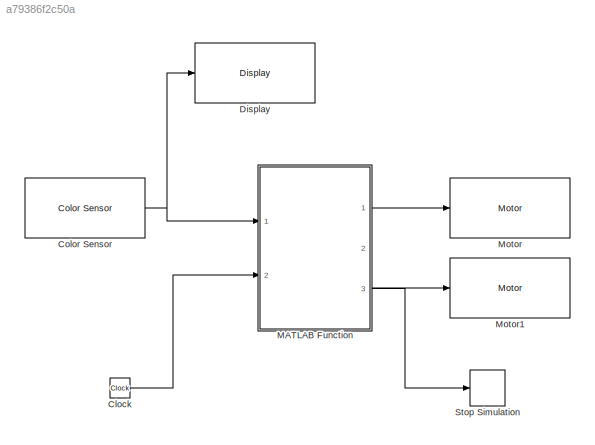
MODEL slx_a79386f2c50a
KIND model
CONFIG AbsTol = auto
CONFIG EnableMultiTasking = on
CONFIG FixedStep = auto
CONFIG MaxStep = auto
CONFIG MinStep = auto
CONFIG RelTol = 1e-3
CONFIG SampleTimeConstraint = Unconstrained
CONFIG Solver = FixedStepAuto
CONFIG SolverName = FixedStepAuto
CONFIG StartTime = 0.0
CONFIG StopTime = 10.0
BLOCK [Clock] Clock
  Decimation = 1000
BLOCK [Reference] Color Sensor  REF=legoev3lib/Color Sensor
  Ports = [0, 1]
  SourceBlock = legoev3lib/Color Sensor
  SourceType = LEGO MINDSTORMS EV3 Color Sensor
BLOCK [Reference] Display  REF=legoev3lib/Display
  Ports = [1]
  SourceBlock = legoev3lib/Display
  SourceType = LEGO MINDSTORMS EV3 Display
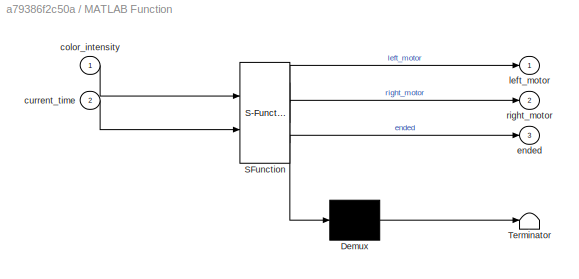
BLOCK [SubSystem] MATLAB Function
  ErrorFcn = Stateflow.Translate.translate
  PermitHierarchicalResolution = ExplicitOnly
  Ports = [2, 3]
  RequestExecContextInheritance = off
  SFBlockType = MATLAB Function
  TreatAsAtomicUnit = on
  Variant = off
BLOCK [Demux] MATLAB Function/ Demux 
  Outputs = 1
  Ports = [1, 1]
BLOCK [S-Function] MATLAB Function/ SFunction 
  EnableBusSupport = on
  FunctionName = sf_sfun
  PortCounts = [2 4]
  Ports = [2, 4]
  SFcnIsStateOwnerBlock = off
  SFunctionDeploymentMode = off
  Tag = Stateflow S-Function control_light 2
BLOCK [Terminator] MATLAB Function/ Terminator 
BLOCK [Inport] MATLAB Function/color_intensity
  IconDisplay = Port number
BLOCK [Inport] MATLAB Function/current_time
  IconDisplay = Port number
  Port = 2
BLOCK [Outport] MATLAB Function/ended
  IconDisplay = Port number
  Port = 3
BLOCK [Outport] MATLAB Function/left_motor
  IconDisplay = Port number
BLOCK [Outport] MATLAB Function/right_motor
  IconDisplay = Port number
  Port = 2
BLOCK [Reference] Motor  REF=legoev3lib/Motor
  Ports = [1]
  SourceBlock = legoev3lib/Motor
  SourceType = LEGO MINDSTORMS EV3 Motor
BLOCK [Reference] Motor1  REF=legoev3lib/Motor
  Ports = [1]
  SourceBlock = legoev3lib/Motor
  SourceType = LEGO MINDSTORMS EV3 Motor
BLOCK [Stop] Stop Simulation
LINE Clock:1 -> MATLAB Function:2
NET Color Sensor:1 -> Display:1, MATLAB Function:1
LINE MATLAB Function:1 -> Motor:1
LINE MATLAB Function:2 -> Motor1:1
LINE MATLAB Function:3 -> Stop Simulation:1
note: NET lines group one-source signal fan-out (src -> all destinations, sorted); 1:1 wires keep LINE
CHART MATLAB Function states=1 transitions=1
  STATE_LABEL 'eML_blk_kernel()'
  STATE_LABEL 'SCRIPT:\nfunction [left_motor, right_motor, ended] = control(color_intensity, current_time)\n    persistent times;\n    persistent intensities;\n    persistent counter;\n    if isempty(times)\n        counter = 1;\n        times = zeros(5000,1);\n        intensities = zeros(5000,1);\n    end\n    if(current_time < 5)\n        times(counter,1) = current_time; intensities(counter,1) = color_intensity;\n        ...<+829ch>'
